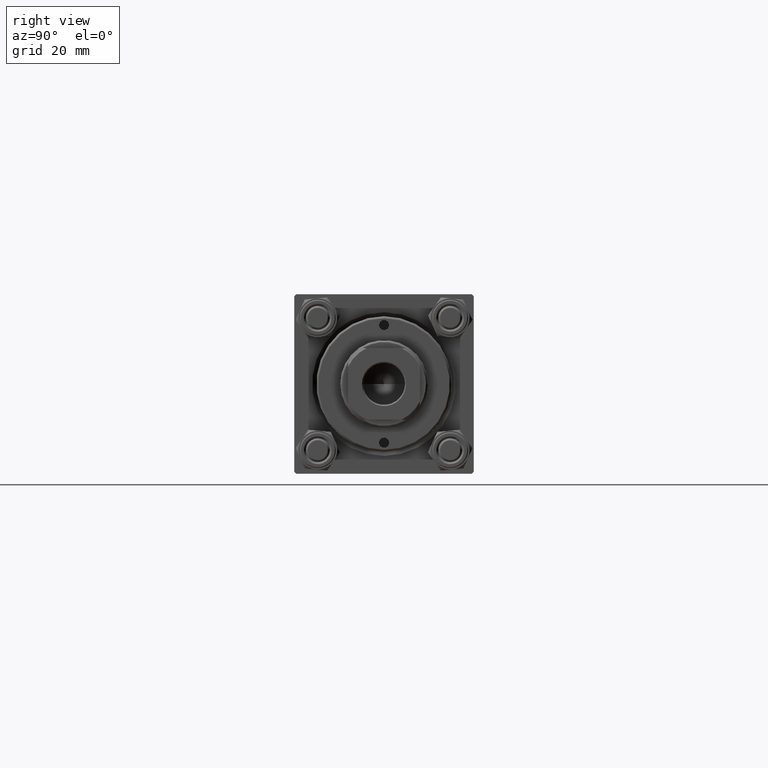
[diagram: clean part render]
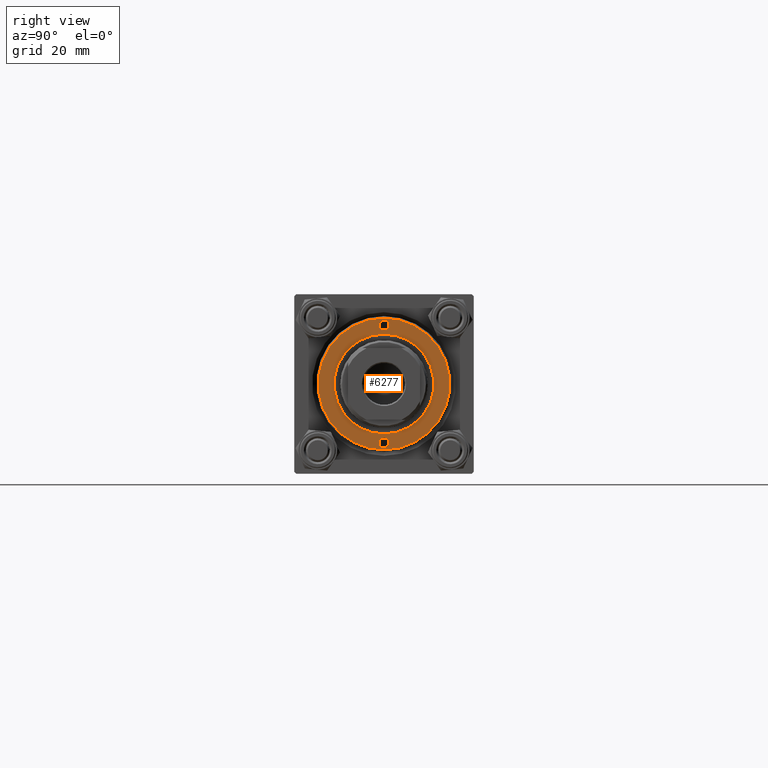
[diagram: same view with one face highlighted and labeled with its STEP entity id]
A machine part, right view. The second image highlights one B-rep face of the part: STEP entity #6277.
In plain terms, the highlighted planar face has unit normal (1, 0, -0).
Its self-contained STEP definition (entity closure, byte-faithful):
#367 = CARTESIAN_POINT ( 'NONE',  ( 0.000000000000000000, 0.000000000000000000, 40.70000000000000284 ) ) ;
#449 = AXIS2_PLACEMENT_3D ( 'NONE', #40887, #48743, #43925 ) ;
#926 = VERTEX_POINT ( 'NONE', #47494 ) ;
#1830 = VERTEX_POINT ( 'NONE', #25287 ) ;
#2028 = AXIS2_PLACEMENT_3D ( 'NONE', #26449, #14312, #10759 ) ;
#3333 = EDGE_CURVE ( 'NONE', #49541, #926, #5996, .T. ) ;
#5416 = ORIENTED_EDGE ( 'NONE', *, *, #3333, .F. ) ;
#5713 = FACE_OUTER_BOUND ( 'NONE', #14152, .T. ) ;
#5996 = CIRCLE ( 'NONE', #41557, 1.249999999999999334 ) ;
#6277 = ADVANCED_FACE ( 'NONE', ( #25961, #41393, #6720, #5713 ), #33315, .T. ) ;
#6540 = ORIENTED_EDGE ( 'NONE', *, *, #45812, .F. ) ;
#6720 = FACE_BOUND ( 'NONE', #28147, .T. ) ;
#7958 = DIRECTION ( 'NONE',  ( 1.000000000000000000, 0.000000000000000000, 0.000000000000000000 ) ) ;
#8044 = ORIENTED_EDGE ( 'NONE', *, *, #35002, .T. ) ;
#8536 = DIRECTION ( 'NONE',  ( 0.000000000000000000, 0.000000000000000000, 1.000000000000000000 ) ) ;
#8903 = CARTESIAN_POINT ( 'NONE',  ( -14.75000000000000000, 0.000000000000000000, 40.70000000000000284 ) ) ;
#8951 = VERTEX_POINT ( 'NONE', #41804 ) ;
#10085 = DIRECTION ( 'NONE',  ( 1.000000000000000000, 0.000000000000000000, 0.000000000000000000 ) ) ;
#10468 = AXIS2_PLACEMENT_3D ( 'NONE', #38777, #46603, #49671 ) ;
#10759 = DIRECTION ( 'NONE',  ( 1.000000000000000000, 0.000000000000000000, 0.000000000000000000 ) ) ;
#11729 = ORIENTED_EDGE ( 'NONE', *, *, #35959, .F. ) ;
#11823 = VERTEX_POINT ( 'NONE', #13458 ) ;
#12743 = CARTESIAN_POINT ( 'NONE',  ( -14.75000000000000000, 0.000000000000000000, 40.70000000000000284 ) ) ;
#13458 = CARTESIAN_POINT ( 'NONE',  ( -12.50000000000000000, 1.530808498934191521E-15, 40.70000000000000284 ) ) ;
#14008 = VERTEX_POINT ( 'NONE', #42735 ) ;
#14049 = ORIENTED_EDGE ( 'NONE', *, *, #39352, .F. ) ;
#14152 = EDGE_LOOP ( 'NONE', ( #8044, #46933 ) ) ;
#14312 = DIRECTION ( 'NONE',  ( 0.000000000000000000, 0.000000000000000000, 1.000000000000000000 ) ) ;
#16754 = CIRCLE ( 'NONE', #41860, 12.50000000000000000 ) ;
#17240 = DIRECTION ( 'NONE',  ( 1.000000000000000000, 0.000000000000000000, 0.000000000000000000 ) ) ;
#17618 = EDGE_LOOP ( 'NONE', ( #11729, #18753 ) ) ;
#18753 = ORIENTED_EDGE ( 'NONE', *, *, #36638, .F. ) ;
#23774 = CIRCLE ( 'NONE', #49661, 1.250000000000001110 ) ;
#23847 = CIRCLE ( 'NONE', #2028, 12.50000000000000000 ) ;
#24235 = DIRECTION ( 'NONE',  ( 1.000000000000000000, 0.000000000000000000, 0.000000000000000000 ) ) ;
#25253 = CARTESIAN_POINT ( 'NONE',  ( 14.75000000000000000, 0.000000000000000000, 40.70000000000000284 ) ) ;
#25287 = CARTESIAN_POINT ( 'NONE',  ( -16.49999999999999289, 0.000000000000000000, 40.70000000000000284 ) ) ;
#25961 = FACE_BOUND ( 'NONE', #38862, .T. ) ;
#26449 = CARTESIAN_POINT ( 'NONE',  ( 0.000000000000000000, 0.000000000000000000, 40.70000000000000284 ) ) ;
#27082 = CIRCLE ( 'NONE', #44855, 16.49999999999999289 ) ;
#28147 = EDGE_LOOP ( 'NONE', ( #14049, #6540 ) ) ;
#28524 = CARTESIAN_POINT ( 'NONE',  ( 14.75000000000000000, 0.000000000000000000, 40.70000000000000284 ) ) ;
#28618 = DIRECTION ( 'NONE',  ( -0.000000000000000000, -0.000000000000000000, 1.000000000000000000 ) ) ;
#30256 = DIRECTION ( 'NONE',  ( 0.000000000000000000, 0.000000000000000000, 1.000000000000000000 ) ) ;
#31729 = DIRECTION ( 'NONE',  ( -0.000000000000000000, -0.000000000000000000, 1.000000000000000000 ) ) ;
#32560 = DIRECTION ( 'NONE',  ( 1.000000000000000000, 0.000000000000000000, 0.000000000000000000 ) ) ;
#33315 = PLANE ( 'NONE',  #449 ) ;
#33526 = CIRCLE ( 'NONE', #35935, 1.249999999999999334 ) ;
#35002 = EDGE_CURVE ( 'NONE', #1830, #8951, #27082, .T. ) ;
#35935 = AXIS2_PLACEMENT_3D ( 'NONE', #8903, #28618, #17240 ) ;
#35959 = EDGE_CURVE ( 'NONE', #48218, #39337, #49630, .T. ) ;
#36638 = EDGE_CURVE ( 'NONE', #39337, #48218, #23774, .T. ) ;
#36908 = DIRECTION ( 'NONE',  ( -0.000000000000000000, -0.000000000000000000, 1.000000000000000000 ) ) ;
#38072 = EDGE_CURVE ( 'NONE', #926, #49541, #33526, .T. ) ;
#38777 = CARTESIAN_POINT ( 'NONE',  ( 0.000000000000000000, 0.000000000000000000, 40.70000000000000284 ) ) ;
#38862 = EDGE_LOOP ( 'NONE', ( #45497, #5416 ) ) ;
#39337 = VERTEX_POINT ( 'NONE', #48973 ) ;
#39352 = EDGE_CURVE ( 'NONE', #14008, #11823, #23847, .T. ) ;
#40835 = AXIS2_PLACEMENT_3D ( 'NONE', #25253, #36908, #10085 ) ;
#40887 = CARTESIAN_POINT ( 'NONE',  ( 0.000000000000000000, 0.000000000000000000, 40.70000000000000284 ) ) ;
#41393 = FACE_BOUND ( 'NONE', #17618, .T. ) ;
#41557 = AXIS2_PLACEMENT_3D ( 'NONE', #12743, #31729, #47410 ) ;
#41804 = CARTESIAN_POINT ( 'NONE',  ( 16.49999999999999289, 2.051283388571816493E-15, 40.70000000000000284 ) ) ;
#41860 = AXIS2_PLACEMENT_3D ( 'NONE', #46995, #8536, #32560 ) ;
#42683 = CARTESIAN_POINT ( 'NONE',  ( 16.00000000000000000, 0.000000000000000000, 40.70000000000000284 ) ) ;
#42735 = CARTESIAN_POINT ( 'NONE',  ( 12.50000000000000000, 0.000000000000000000, 40.70000000000000284 ) ) ;
#43925 = DIRECTION ( 'NONE',  ( 1.000000000000000000, 0.000000000000000000, -0.000000000000000000 ) ) ;
#44855 = AXIS2_PLACEMENT_3D ( 'NONE', #367, #30256, #7958 ) ;
#45497 = ORIENTED_EDGE ( 'NONE', *, *, #38072, .F. ) ;
#45812 = EDGE_CURVE ( 'NONE', #11823, #14008, #16754, .T. ) ;
#46603 = DIRECTION ( 'NONE',  ( 0.000000000000000000, 0.000000000000000000, 1.000000000000000000 ) ) ;
#46825 = CIRCLE ( 'NONE', #10468, 16.49999999999999289 ) ;
#46933 = ORIENTED_EDGE ( 'NONE', *, *, #49712, .T. ) ;
#46995 = CARTESIAN_POINT ( 'NONE',  ( 0.000000000000000000, 0.000000000000000000, 40.70000000000000284 ) ) ;
#47410 = DIRECTION ( 'NONE',  ( 1.000000000000000000, 0.000000000000000000, 0.000000000000000000 ) ) ;
#47494 = CARTESIAN_POINT ( 'NONE',  ( -13.50000000000000000, 0.000000000000000000, 40.70000000000000284 ) ) ;
#47512 = DIRECTION ( 'NONE',  ( -0.000000000000000000, -0.000000000000000000, 1.000000000000000000 ) ) ;
#48218 = VERTEX_POINT ( 'NONE', #42683 ) ;
#48668 = CARTESIAN_POINT ( 'NONE',  ( -16.00000000000000000, 1.530808498934190585E-16, 40.70000000000000284 ) ) ;
#48743 = DIRECTION ( 'NONE',  ( 0.000000000000000000, 0.000000000000000000, 1.000000000000000000 ) ) ;
#48973 = CARTESIAN_POINT ( 'NONE',  ( 13.49999999999999822, 1.530808498934192803E-16, 40.70000000000000284 ) ) ;
#49541 = VERTEX_POINT ( 'NONE', #48668 ) ;
#49630 = CIRCLE ( 'NONE', #40835, 1.250000000000001110 ) ;
#49661 = AXIS2_PLACEMENT_3D ( 'NONE', #28524, #47512, #24235 ) ;
#49671 = DIRECTION ( 'NONE',  ( 1.000000000000000000, 0.000000000000000000, 0.000000000000000000 ) ) ;
#49712 = EDGE_CURVE ( 'NONE', #8951, #1830, #46825, .T. ) ;